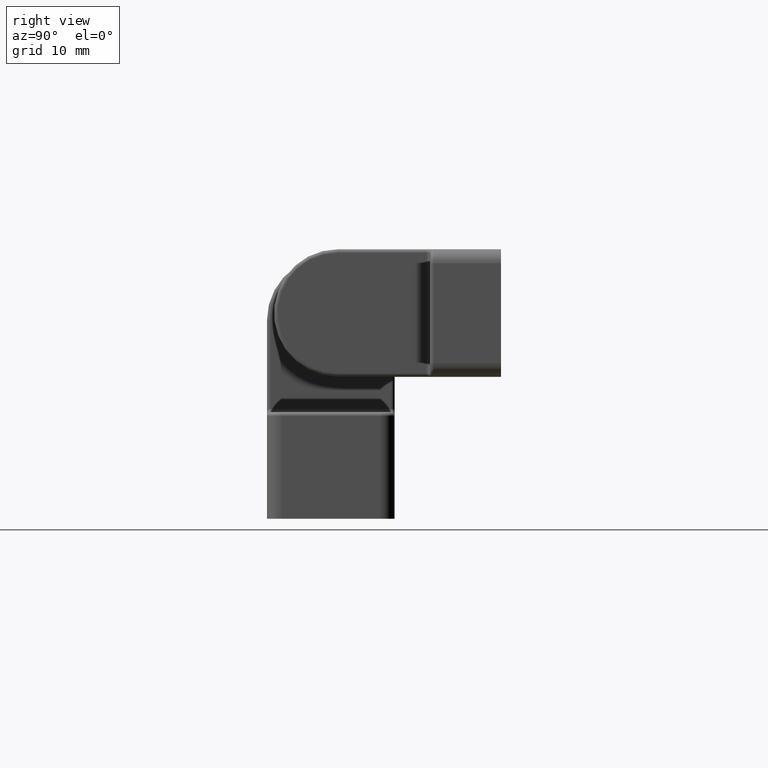
[diagram: clean part render]
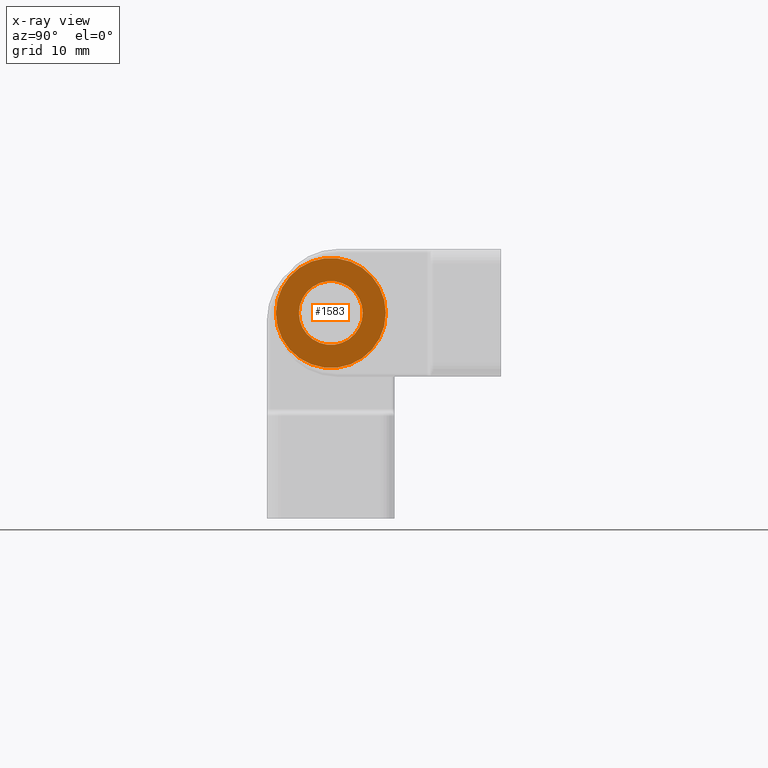
[diagram: x-ray — body ghosted, one internal face saturated and labeled with its STEP entity id]
A machine part, right view, then the same camera in x-ray: the body is ghosted and one INTERNAL B-rep face — a face not visible from any outside direction — is saturated and labeled: STEP entity #1583.
In plain terms, the highlighted planar face has unit normal (-1, 0, -0).
Its self-contained STEP definition (entity closure, byte-faithful):
#90=FACE_BOUND('',#579,.T.);
#116=PLANE('',#1826);
#428=FACE_OUTER_BOUND('',#578,.T.);
#578=EDGE_LOOP('',(#1454));
#579=EDGE_LOOP('',(#1455));
#706=CIRCLE('',#1821,4.5);
#708=CIRCLE('',#1824,7.75);
#842=VERTEX_POINT('',#2831);
#844=VERTEX_POINT('',#2836);
#1046=EDGE_CURVE('',#842,#842,#706,.T.);
#1048=EDGE_CURVE('',#844,#844,#708,.T.);
#1454=ORIENTED_EDGE('',*,*,#1048,.T.);
#1455=ORIENTED_EDGE('',*,*,#1046,.T.);
#1583=ADVANCED_FACE('',(#428,#90),#116,.F.);
#1821=AXIS2_PLACEMENT_3D('',#2832,#2370,#2371);
#1824=AXIS2_PLACEMENT_3D('',#2837,#2376,#2377);
#1826=AXIS2_PLACEMENT_3D('',#2840,#2380,#2381);
#2370=DIRECTION('center_axis',(1.,0.,0.));
#2371=DIRECTION('ref_axis',(0.,0.,1.));
#2376=DIRECTION('center_axis',(-1.,0.,0.));
#2377=DIRECTION('ref_axis',(0.,0.,1.));
#2380=DIRECTION('center_axis',(1.,0.,0.));
#2381=DIRECTION('ref_axis',(0.,0.,-1.));
#2831=CARTESIAN_POINT('',(-2.5,5.51091059616309E-16,19.5));
#2832=CARTESIAN_POINT('Origin',(-2.5,0.,24.));
#2836=CARTESIAN_POINT('',(-2.5,9.49101269339199E-16,16.25));
#2837=CARTESIAN_POINT('Origin',(-2.5,0.,24.));
#2840=CARTESIAN_POINT('Origin',(-2.5,0.,24.));